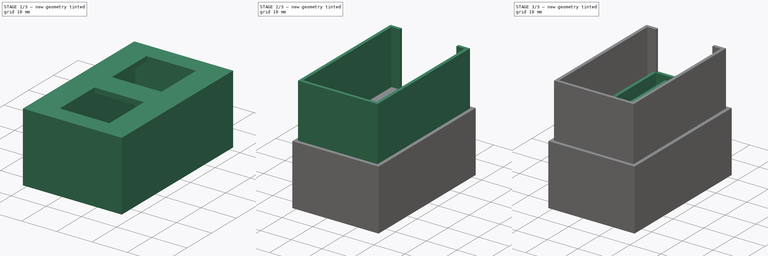
[diagram: build sequence overview — one tinted view per stage of 3, left to right]
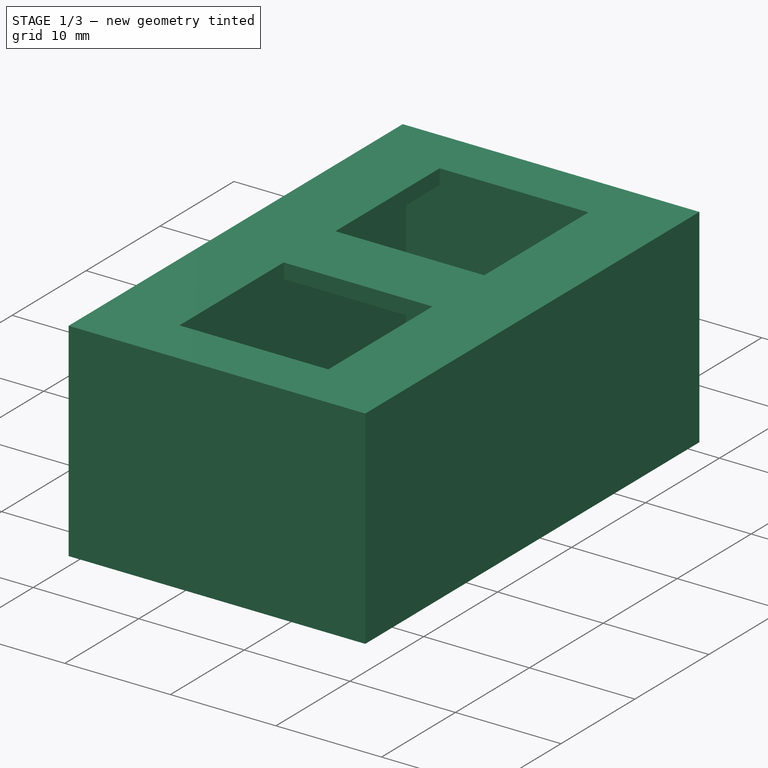
[diagram: stage 1 of 3 — iso view after this stage's code; geometry added in this stage tinted green]
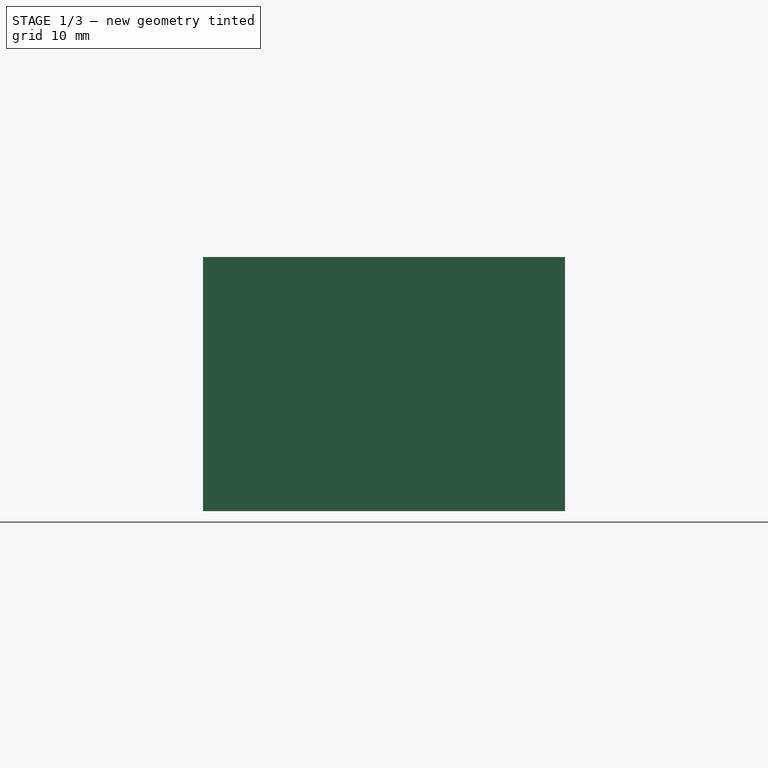
[diagram: stage 1 of 3 — front view after this stage's code; geometry added in this stage tinted green]
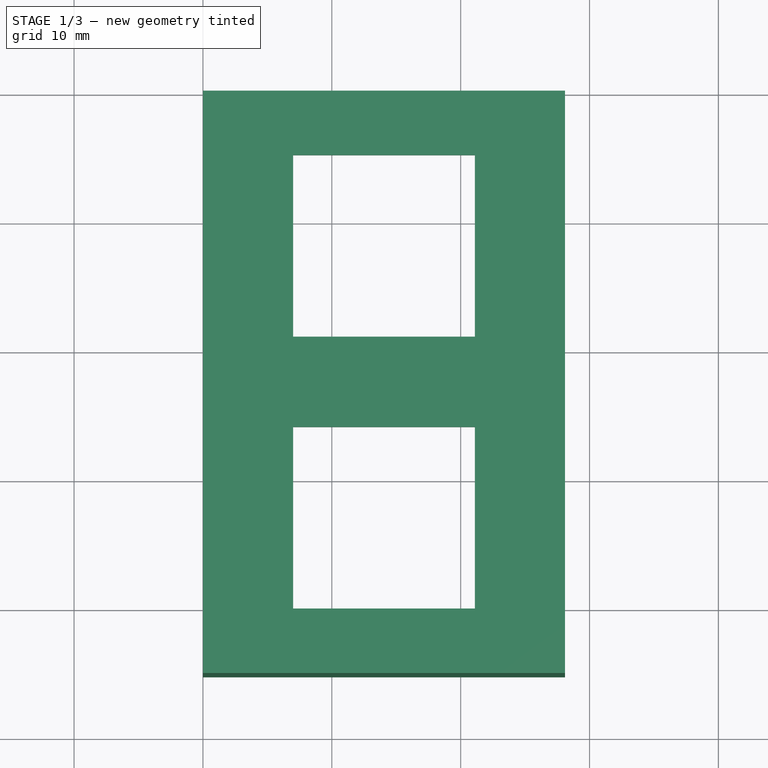
[diagram: stage 1 of 3 — top view after this stage's code; geometry added in this stage tinted green]
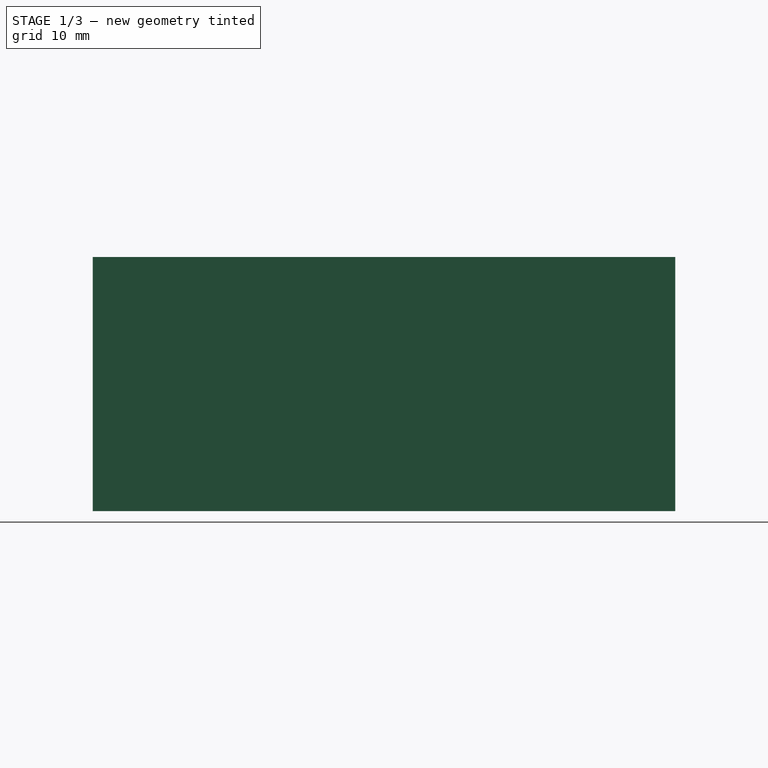
[diagram: stage 1 of 3 — right view after this stage's code; geometry added in this stage tinted green]
FCSTD DOCUMENT  (FreeCAD 0.18.4R)
Label: osu_keypad
License: All rights reserved
LicenseURL: http://en.wikipedia.org/wiki/All_rights_reserved
objects: Sketcher::SketchObject×8, PartDesign::Pad×8, Spreadsheet::Sheet×3, PartDesign::Body×3
note: 27 computed .brp shape members not serialized (recipe doc carries the construction recipe); baked Part::Feature solids carry a one-line shape summary decoded from their .brp

FEATURE [PartDesign::Body] Body  label="IDK"
  Group = -> [Sketch]
  Origin = -> Origin
FEATURE [Sketcher::SketchObject] Sketch005
  MapMode = 5
  Support = -> [XY_Plane002]
  expr: Constraints[36] = Switches.inBetween
  expr: Constraints[31] = Switches.topBuffer
  expr: Constraints[30] = Switches.totalWidth + Global.tolerances
  expr: Constraints[32] = Switches.sideBuffer
  expr: Constraints[29] = Switches.totalWidth + Global.tolerances
  expr: Constraints[20] = Switches.totalWidth + Global.tolerances
  expr: Constraints[19] = Switches.totalWidth + Global.tolerances
  expr: Constraints[10] = Switches.sideBuffer * 2 + (Switches.totalWidth + Global.tolerances) * 2 + Switches.inBetween
  expr: Constraints[9] = Switches.totalLength + Global.tolerances + Switches.topBuffer * 2
  sketch-geometry (13):
    g0: LineSegment StartX=0 StartY=0 StartZ=0 EndX=28.1 EndY=0 EndZ=0
    g1: LineSegment StartX=28.1 StartY=0 StartZ=0 EndX=28.1 EndY=-45.2 EndZ=0
    g2: LineSegment StartX=0 StartY=0 StartZ=0 EndX=0 EndY=-45.2 EndZ=0
    g3: LineSegment StartX=0 StartY=-45.2 StartZ=0 EndX=28.1 EndY=-45.2 EndZ=0
    g4: LineSegment StartX=7 StartY=-40.2 StartZ=0 EndX=21.1 EndY=-40.2 EndZ=0
    g5: LineSegment StartX=21.1 StartY=-40.2 StartZ=0 EndX=21.1 EndY=-26.1 EndZ=0
    g6: LineSegment StartX=21.1 StartY=-26.1 StartZ=0 EndX=7 EndY=-26.1 EndZ=0
    g7: LineSegment StartX=7 StartY=-26.1 StartZ=0 EndX=7 EndY=-40.2 EndZ=0
    g8: LineSegment StartX=7 StartY=-19.1 StartZ=0 EndX=7 EndY=-5 EndZ=0
    g9: LineSegment StartX=7 StartY=-5 StartZ=0 EndX=21.1 EndY=-5 EndZ=0
    g10: LineSegment StartX=21.1 StartY=-5 StartZ=0 EndX=21.1 EndY=-19.1 EndZ=0
    g11: LineSegment StartX=21.1 StartY=-19.1 StartZ=0 EndX=7 EndY=-19.1 EndZ=0
    g12: LineSegment [constr] StartX=7 StartY=-26.1 StartZ=0 EndX=7 EndY=-19.1 EndZ=0
  constraints (37):
    c: Coincident(g2,g0)
    c: Coincident(g0,g-1)
    c: Coincident(g0,g1)
    c: Coincident(g3,g1)
    c: Coincident(g3,g2)
    c: Vertical(g2)
    c: Vertical(g1)
    c: Horizontal(g0)
    c: Horizontal(g3)
    c: Distance(g0) = 28.1
    c: Distance(g2) = 45.2
    c: Coincident(g7,g4)
    c: Coincident(g7,g6)
    c: Coincident(g5,g6)
    c: Coincident(g5,g4)
    c: Vertical(g7)
    c: Vertical(g5)
    c: Horizontal(g4)
    c: Horizontal(g6)
    c: Distance(g7) = 14.1
    c: Distance(g4) = 14.1
    c: Coincident(g11,g8)
    c: Coincident(g10,g11)
    c: Coincident(g10,g9)
    c: Coincident(g8,g9)
    c: Vertical(g8)
    c: Vertical(g10)
    c: Horizontal(g11)
    c: Horizontal(g9)
    c: Distance(g8) = 14.1
    c: Distance(g11) = 14.1
    c: DistanceX(g2,g4) = 7
    c: DistanceY(g2,g4) = 5
    c: Vertical(g12)
    c: Coincident(g12,g6)
    c: Coincident(g8,g12)
    c: Distance(g12) = 7
FEATURE [PartDesign::Pad] Pad005
  Length = 1.42
  Length2 = 100
  Profile = -> Sketch005
  Type = 0
  expr: Length = Switches.clipDistance
FEATURE [PartDesign::Body] Body001  label="Base"
  Group = -> [Pad,Sketch001,Pad001,Sketch002,Pad002,Sketch003,Pad003,Sketch008,Pad006]
  Origin = -> Origin001
  Tip = -> Pad006
FEATURE [PartDesign::Pad] Pad007
  BaseFeature = -> Pad005
  Length = 18.3
  Length2 = 100
  Profile = -> Sketch007
  Reversed = true
  Type = 0
  expr: Length = Global.outerWallHeight + Global.tolerances
FEATURE [Sketcher::SketchObject] Sketch009
  AttachmentOffset = pos=(0,0,0) rot=(1,0,0;3.14159rad)
  ExternalGeometry = -> [Pad007]
  MapMode = 5
  Support = -> [Pad007]
  sketch-geometry (4):
    g0: LineSegment StartX=10.25 StartY=0 StartZ=0 EndX=17.85 EndY=-2e-16 EndZ=0
    g1: LineSegment StartX=10.25 StartY=0 StartZ=0 EndX=10.25 EndY=-1 EndZ=0
    g2: LineSegment StartX=17.85 StartY=-2e-16 StartZ=0 EndX=17.85 EndY=-1 EndZ=0
    g3: LineSegment StartX=17.85 StartY=-1 StartZ=0 EndX=10.25 EndY=-1 EndZ=0
  constraints (8):
    c: Coincident(g1,g0)
    c: Coincident(g0,g2)
    c: Coincident(g2,g3)
    c: Coincident(g3,g1)
    c: Coincident(g1,g-4)
    c: Coincident(g0,g-4)
    c: Coincident(g2,g-3)
    c: Coincident(g0,g-3)
FEATURE [PartDesign::Pad] Pad008
  BaseFeature = -> Pad007
  Length = 10.2
  Length2 = 100
  Offset = 1
  Profile = -> Sketch009
  Reversed = true
  Type = 0
  expr: Length = Global.outerWallHeight + Global.tolerances - (ProMicro.solderBuffer + ProMicro.height + Global.tolerances * 2)
FEATURE [PartDesign::Body] Body002  label="Top"
  Group = -> [Sketch005,Pad005,Sketch007,Pad007,Sketch009,Pad008]
  Origin = -> Origin002
  Placement = pos=(0,0,19.3) rot=(0,0,1;0rad)
  Tip = -> Pad008
  expr: Placement.Base.z = Global.outerWallHeight + Global.wallThickness + Global.tolerances
  expr: Placement.Base.y = 0
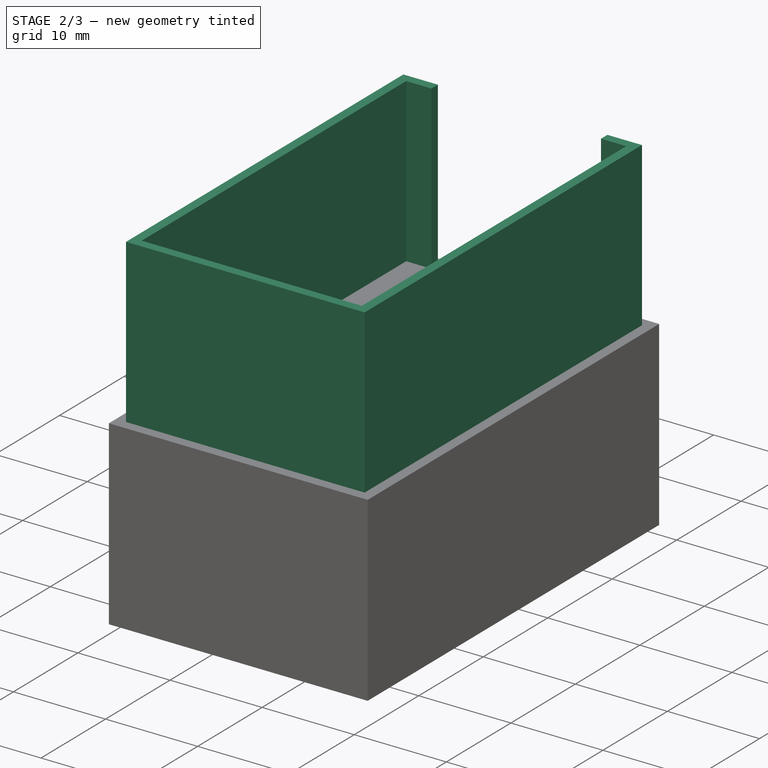
[diagram: stage 2 of 3 — iso view after this stage's code; geometry added in this stage tinted green]
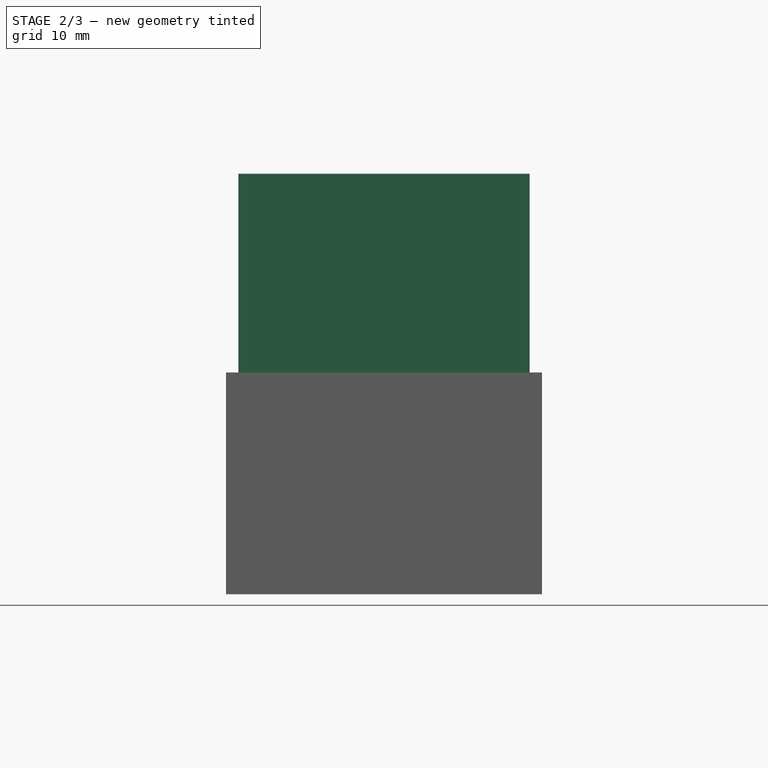
[diagram: stage 2 of 3 — front view after this stage's code; geometry added in this stage tinted green]
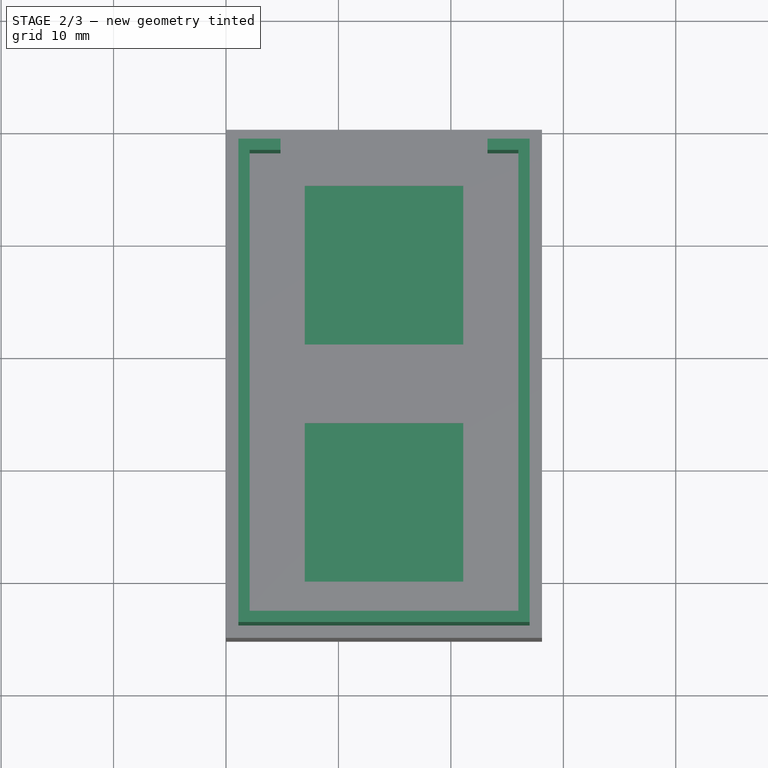
[diagram: stage 2 of 3 — top view after this stage's code; geometry added in this stage tinted green]
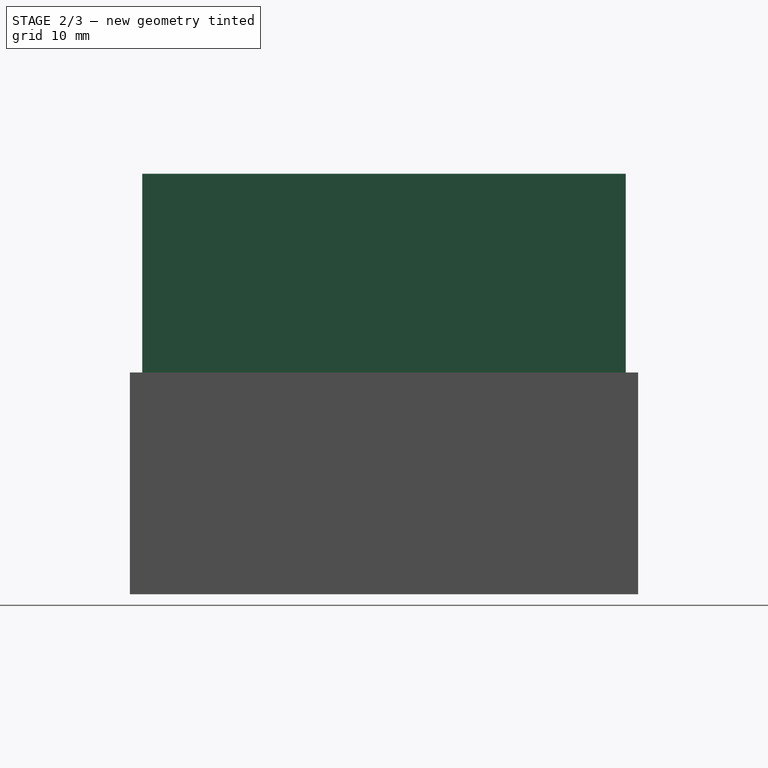
[diagram: stage 2 of 3 — right view after this stage's code; geometry added in this stage tinted green]
FEATURE [Spreadsheet::Sheet] Spreadsheet  label="ProMicro"
  cells = A1=Width; B1(width)=18.3; A2=Length; B2(length)=33.7; A3=Height; B3(height)=3.9; A4=PortWidth; B4(portWidth)=7.5; A5=SolderBuffer; B5(solderBuffer)=4; A6=PCBThickness; B6(PCBThickness)=1.5; A7=MicrochipThickness; B7(microchipThickness)=0.8; A9=SolderInset; B9(solderBufferInset)=3
FEATURE [Spreadsheet::Sheet] Spreadsheet001  label="Global"
  cells = A1=Tolerances; B1(tolerances)=0.1; A2=WallThickness; B2(wallThickness)=1; A3=InBetweenDist; B3(inBetweenDist)=2; A4=OuterWallHeight; B4(outerWallHeight)==ProMicro.solderBuffer + ProMicro.height + inBetweenDist + Switches.underDepth
FEATURE [Spreadsheet::Sheet] Spreadsheet002  label="Switches"
  cells = A1=TotalWidth; B1(totalWidth)=14; A2=TotalLength; B2(totalLength)=14; A3=InBetween; B3(inBetween)=7; A4=TopBuffer; B4(topBuffer)=7; A5=SideBuffer; B5(sideBuffer)=5; A6=UnderDepth; B6(underDepth)==5 + 3.3; A7=ClipDistance; B7(clipDistance)=1.42
FEATURE [Sketcher::SketchObject] Sketch
  MapMode = 5
  Placement = pos=(0,0,0) rot=(1,0,0;1.5708rad)
  Support = -> [XZ_Plane]
  expr: Constraints[10] = Switches.totalLength + Global.tolerances + Switches.topBuffer * 2
  expr: Constraints[8] = Global.wallThickness
  sketch-geometry (4):
    g0: LineSegment StartX=0 StartY=1 StartZ=0 EndX=28.1 EndY=1 EndZ=0
    g1: LineSegment StartX=28.1 StartY=1 StartZ=0 EndX=28.1 EndY=0 EndZ=0
    g2: LineSegment StartX=28.1 StartY=0 StartZ=0 EndX=0 EndY=0 EndZ=0
    g3: LineSegment StartX=0 StartY=0 StartZ=0 EndX=0 EndY=1 EndZ=0
  constraints (11):
    c: Coincident(g0,g1)
    c: Coincident(g1,g2)
    c: Coincident(g2,g3)
    c: Coincident(g3,g0)
    c: Horizontal(g0)
    c: Horizontal(g2)
    c: Vertical(g1)
    c: Vertical(g3)
    c: Distance(g3) = 1
    c: Coincident(g2,g-1)
    c: Distance(g0) = 28.1
FEATURE [PartDesign::Pad] Pad
  Length = 45.2
  Length2 = 100
  Placement = pos=(0,0,0) rot=(1,0,0;1.5708rad)
  Profile = -> Sketch
  Type = 0
  expr: Length = Switches.sideBuffer * 2 + (Switches.totalWidth + Global.tolerances) * 2 + Switches.inBetween
FEATURE [Sketcher::SketchObject] Sketch001
  AttachmentOffset = pos=(0,0,0) rot=(0,0,1;3.14159rad)
  ExternalGeometry = -> [Pad]
  MapMode = 5
  Placement = pos=(0,-2e-16,1) rot=(0,0,1;0rad)
  Support = -> [Pad]
  expr: Constraints[37] = ProMicro.width + Global.tolerances
  expr: Constraints[16] = Global.wallThickness
  expr: Constraints[13] = Global.wallThickness + Global.tolerances
  expr: Constraints[7] = Global.wallThickness + Global.tolerances
  expr: Constraints[15] = Global.wallThickness
  expr: Constraints[14] = Global.wallThickness
  expr: Constraints[17] = Global.wallThickness
  expr: Constraints[6] = Global.wallThickness + Global.tolerances
  expr: Constraints[5] = Global.wallThickness + Global.tolerances
  sketch-geometry (13):
    g0: LineSegment StartX=1.1 StartY=-1.1 StartZ=0 EndX=1.1 EndY=-44.1 EndZ=0
    g1: LineSegment StartX=1.1 StartY=-44.1 StartZ=0 EndX=27 EndY=-44.1 EndZ=0
    g2: LineSegment StartX=27 StartY=-44.1 StartZ=0 EndX=27 EndY=-1.1 EndZ=0
    g3: LineSegment StartX=2.1 StartY=-43.1 StartZ=0 EndX=26 EndY=-43.1 EndZ=0
    g4: LineSegment StartX=26 StartY=-43.1 StartZ=0 EndX=26 EndY=-2.1 EndZ=0
    g5: LineSegment StartX=2.1 StartY=-2.1 StartZ=0 EndX=2.1 EndY=-43.1 EndZ=0
    g6: LineSegment StartX=1.1 StartY=-1.1 StartZ=0 EndX=4.85 EndY=-1.1 EndZ=0
    g7: LineSegment StartX=2.1 StartY=-2.1 StartZ=0 EndX=4.85 EndY=-2.1 EndZ=0
    g8: LineSegment StartX=4.85 StartY=-2.1 StartZ=0 EndX=4.85 EndY=-1.1 EndZ=0
    g9: LineSegment StartX=23.25 StartY=-1.1 StartZ=0 EndX=23.25 EndY=-2.1 EndZ=0
    g10: LineSegment StartX=23.25 StartY=-1.1 StartZ=0 EndX=27 EndY=-1.1 EndZ=0
    g11: LineSegment StartX=23.25 StartY=-2.1 StartZ=0 EndX=26 EndY=-2.1 EndZ=0
    g12: LineSegment [constr] StartX=4.85 StartY=-1.1 StartZ=0 EndX=23.25 EndY=-1.1 EndZ=0
  constraints (38):
    c: Vertical(g0)
    c: Vertical(g2)
    c: Horizontal(g1)
    c: Coincident(g1,g2)
    c: Coincident(g1,g0)
    c: DistanceX(g2,g-4) = 1.1
    c: DistanceX(g-1,g0) = 1.1
    c: DistanceY(g-6,g0) = 1.1
    c: Horizontal(g3)
    c: Vertical(g5)
    c: Vertical(g4)
    c: Coincident(g3,g4)
    c: Coincident(g3,g5)
    c: DistanceY(g0,g-1) = 1.1
    c: DistanceY(g5,g0) = 1
    c: DistanceY(g0,g3) = 1
    c: DistanceX(g4,g2) = 1
    c: DistanceX(g0,g5) = 1
    c: Horizontal(g10)
    c: Horizontal(g11)
    c: Horizontal(g7)
    c: Horizontal(g6)
    c: Vertical(g8)
    c: Vertical(g9)
    c: Coincident(g8,g6)
    c: Coincident(g7,g8)
    c: Coincident(g9,g11)
    c: Coincident(g9,g10)
    c: Coincident(g10,g2)
    c: Coincident(g11,g4)
    c: Coincident(g6,g0)
    c: Coincident(g7,g5)
    c: Equal(g8,g9)
    c: Equal(g11,g7)
    c: Coincident(g12,g6)
    c: Coincident(g12,g9)
    c: Horizontal(g12)
    c: Distance(g12) = 18.4
FEATURE [PartDesign::Pad] Pad001
  BaseFeature = -> Pad
  Length = 18.1
  Length2 = 100
  Placement = pos=(0,0,0) rot=(1,0,0;1.5708rad)
  Profile = -> Sketch001
  Type = 0
  expr: Length = Global.outerWallHeight - Global.tolerances
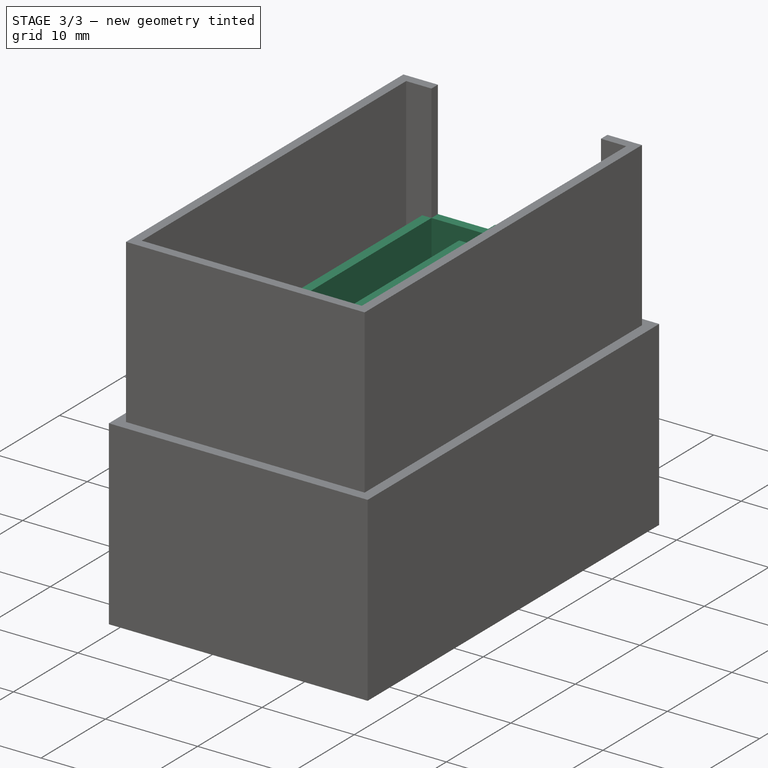
[diagram: stage 3 of 3 — iso view after this stage's code; geometry added in this stage tinted green]
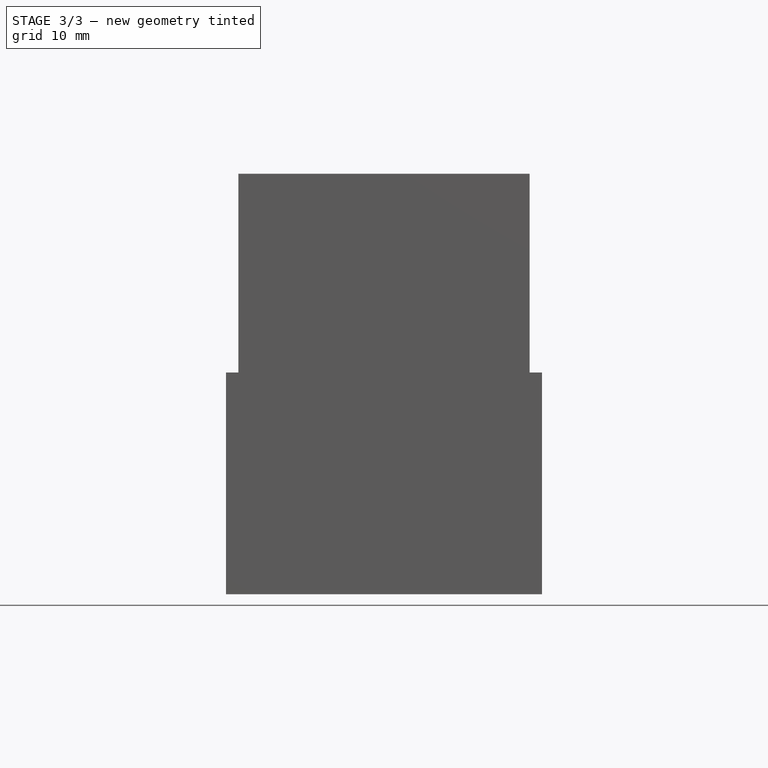
[diagram: stage 3 of 3 — front view after this stage's code; geometry added in this stage tinted green]
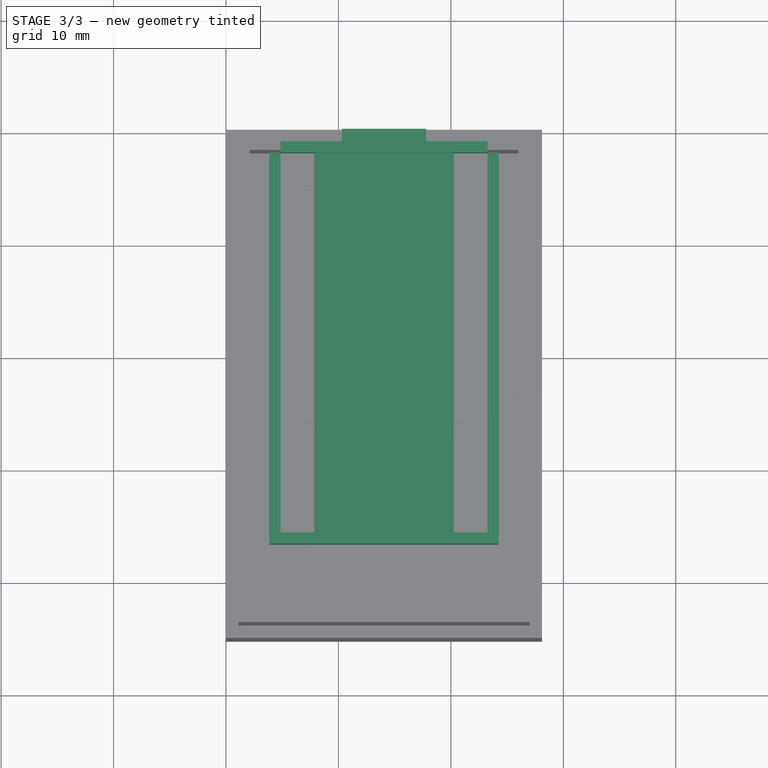
[diagram: stage 3 of 3 — top view after this stage's code; geometry added in this stage tinted green]
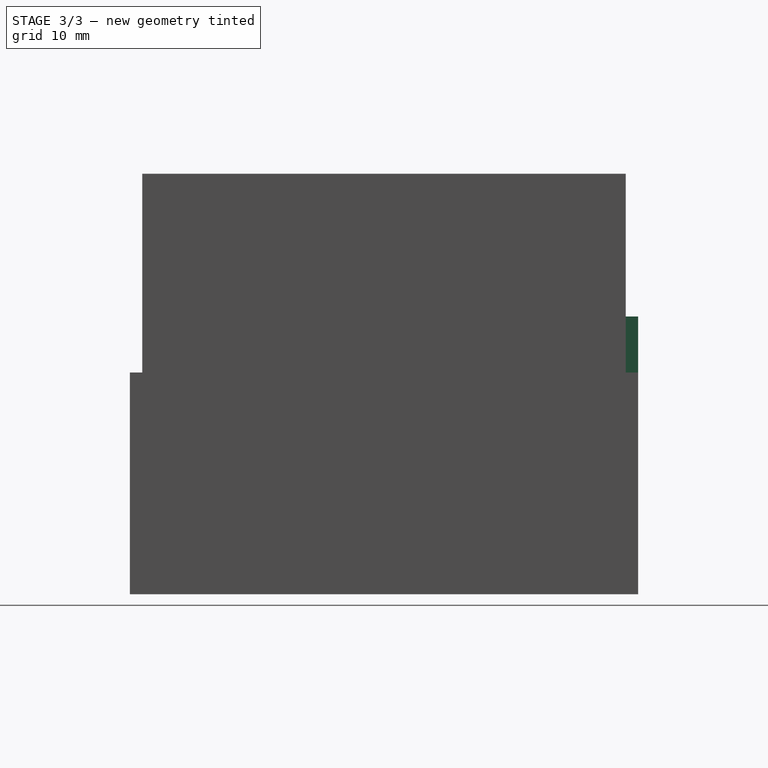
[diagram: stage 3 of 3 — right view after this stage's code; geometry added in this stage tinted green]
FEATURE [Sketcher::SketchObject] Sketch002
  ExternalGeometry = -> [Pad001]
  MapMode = 5
  Placement = pos=(0,-2e-16,1) rot=(0,0,1;3.14159rad)
  Support = -> [Pad001]
  expr: Constraints[23] = ProMicro.portWidth
  sketch-geometry (10):
    g0: LineSegment StartX=-4.85 StartY=2.1 StartZ=0 EndX=-23.25 EndY=2.1 EndZ=0
    g1: LineSegment StartX=-4.85 StartY=1.1 StartZ=0 EndX=-4.85 EndY=2.1 EndZ=0
    g2: LineSegment StartX=-23.25 StartY=1.1 StartZ=0 EndX=-23.25 EndY=2.1 EndZ=0
    g3: LineSegment StartX=-10.3 StartY=0 StartZ=0 EndX=-10.3 EndY=1.1 EndZ=0
    g4: LineSegment StartX=-17.8 StartY=0 StartZ=0 EndX=-17.8 EndY=1.1 EndZ=0
    g5: LineSegment [constr] StartX=-17.8 StartY=0 StartZ=0 EndX=-28.1 EndY=0 EndZ=0
    g6: LineSegment [constr] StartX=-10.3 StartY=0 StartZ=0 EndX=0 EndY=0 EndZ=0
    g7: LineSegment StartX=-10.3 StartY=0 StartZ=0 EndX=-17.8 EndY=0 EndZ=0
    g8: LineSegment StartX=-4.85 StartY=1.1 StartZ=0 EndX=-10.3 EndY=1.1 EndZ=0
    g9: LineSegment StartX=-17.8 StartY=1.1 StartZ=0 EndX=-23.25 EndY=1.1 EndZ=0
  constraints (24):
    c: Coincident(g0,g-3)
    c: Coincident(g0,g-4)
    c: Coincident(g0,g1)
    c: Coincident(g2,g0)
    c: Coincident(g6,g-1)
    c: Coincident(g6,g7)
    c: Coincident(g7,g3)
    c: Coincident(g3,g8)
    c: Coincident(g8,g1)
    c: Coincident(g1,g-3)
    c: Coincident(g9,g2)
    c: Coincident(g2,g-4)
    c: Coincident(g9,g4)
    c: Coincident(g4,g7)
    c: Coincident(g4,g5)
    c: Coincident(g5,g-5)
    c: Horizontal(g7)
    c: Equal(g3,g4)
    c: Equal(g5,g6)
    c: Horizontal(g8)
    c: Horizontal(g9)
    c: Horizontal(g6)
    c: Vertical(g3)
    c: Distance(g7) = 7.5
FEATURE [PartDesign::Pad] Pad002
  BaseFeature = -> Pad001
  Length = 5.4
  Length2 = 100
  Placement = pos=(0,0,0) rot=(1,0,0;1.5708rad)
  Profile = -> Sketch002
  Type = 0
  expr: Length = ProMicro.solderBuffer + ProMicro.PCBThickness - Global.tolerances
FEATURE [Sketcher::SketchObject] Sketch003
  ExternalGeometry = -> [Pad002]
  MapMode = 5
  Support = -> [XY_Plane001]
  expr: Constraints[21] = Global.wallThickness
  expr: Constraints[20] = ProMicro.length + Global.tolerances
  expr: Constraints[10] = Global.wallThickness
  sketch-geometry (8):
    g0: LineSegment StartX=4.85 StartY=-2.1 StartZ=0 EndX=3.85 EndY=-2.1 EndZ=0
    g1: LineSegment StartX=3.85 StartY=-2.1 StartZ=0 EndX=3.85 EndY=-36.9 EndZ=0
    g2: LineSegment StartX=4.85 StartY=-2.1 StartZ=0 EndX=4.85 EndY=-35.9 EndZ=0
    g3: LineSegment StartX=3.85 StartY=-36.9 StartZ=0 EndX=24.25 EndY=-36.9 EndZ=0
    g4: LineSegment StartX=4.85 StartY=-35.9 StartZ=0 EndX=23.25 EndY=-35.9 EndZ=0
    g5: LineSegment StartX=23.25 StartY=-35.9 StartZ=0 EndX=23.25 EndY=-2.1 EndZ=0
    g6: LineSegment StartX=23.25 StartY=-2.1 StartZ=0 EndX=24.25 EndY=-2.1 EndZ=0
    g7: LineSegment StartX=24.25 StartY=-2.1 StartZ=0 EndX=24.25 EndY=-36.9 EndZ=0
  constraints (22):
    c: Coincident(g0,g-3)
    c: Coincident(g2,g0)
    c: Coincident(g1,g0)
    c: Coincident(g2,g4)
    c: Coincident(g3,g1)
    c: Coincident(g4,g5)
    c: Coincident(g5,g6)
    c: Coincident(g5,g-3)
    c: Coincident(g6,g7)
    c: Coincident(g7,g3)
    c: DistanceY(g1,g2) = 1
    c: Horizontal(g4)
    c: Horizontal(g3)
    c: Horizontal(g0)
    c: Horizontal(g6)
    c: Vertical(g2)
    c: Vertical(g1)
    c: Vertical(g5)
    c: Vertical(g7)
    c: Equal(g0,g6)
    c: Distance(g2) = 33.8
    c: Distance(g0) = 1
FEATURE [PartDesign::Pad] Pad003
  BaseFeature = -> Pad002
  Length = 10
  Length2 = 100
  Placement = pos=(0,0,0) rot=(1,0,0;1.5708rad)
  Profile = -> Sketch003
  Type = 3
  UpToFace = -> Pad002 [Face17]
FEATURE [Sketcher::SketchObject] Sketch007
  AttachmentOffset = pos=(0,0,0) rot=(1,0,0;3.14159rad)
  ExternalGeometry = -> [Pad005]
  MapMode = 5
  Support = -> [Pad005]
  expr: Constraints[31] = ProMicro.portWidth + Global.tolerances
  expr: Constraints[13] = Global.wallThickness
  expr: Constraints[10] = Global.wallThickness
  expr: Constraints[12] = Global.wallThickness
  expr: Constraints[11] = Global.wallThickness
  sketch-geometry (12):
    g0: LineSegment StartX=28.1 StartY=-2e-16 StartZ=0 EndX=28.1 EndY=-45.2 EndZ=0
    g1: LineSegment StartX=28.1 StartY=-45.2 StartZ=0 EndX=0 EndY=-45.2 EndZ=0
    g2: LineSegment StartX=0 StartY=-45.2 StartZ=0 EndX=0 EndY=0 EndZ=0
    g3: LineSegment StartX=27.1 StartY=-1 StartZ=0 EndX=27.1 EndY=-44.2 EndZ=0
    g4: LineSegment StartX=27.1 StartY=-44.2 StartZ=0 EndX=1 EndY=-44.2 EndZ=0
    g5: LineSegment StartX=1 StartY=-44.2 StartZ=0 EndX=1 EndY=-1 EndZ=0
    g6: LineSegment StartX=0 StartY=0 StartZ=0 EndX=10.25 EndY=0 EndZ=0
    g7: LineSegment StartX=28.1 StartY=-2e-16 StartZ=0 EndX=17.85 EndY=-2e-16 EndZ=0
    g8: LineSegment StartX=10.25 StartY=0 StartZ=0 EndX=10.25 EndY=-1 EndZ=0
    g9: LineSegment StartX=17.85 StartY=-2e-16 StartZ=0 EndX=17.85 EndY=-1 EndZ=0
    g10: LineSegment StartX=17.85 StartY=-1 StartZ=0 EndX=27.1 EndY=-1 EndZ=0
    g11: LineSegment StartX=10.25 StartY=-1 StartZ=0 EndX=1 EndY=-1 EndZ=0
  constraints (33):
    c: Coincident(g0,g1)
    c: Coincident(g1,g2)
    c: Horizontal(g1)
    c: Vertical(g2)
    c: Coincident(g3,g4)
    c: Coincident(g4,g5)
    c: Horizontal(g4)
    c: Vertical(g3)
    c: Vertical(g5)
    c: Coincident(g0,g-6)
    c: DistanceX(g2,g5) = 1
    c: DistanceY(g5,g2) = 1
    c: DistanceX(g3,g0) = 1
    c: DistanceY(g0,g3) = 1
    c: Coincident(g11,g5)
    c: Coincident(g-1,g2)
    c: Coincident(g2,g6)
    c: Coincident(g6,g8)
    c: Coincident(g11,g8)
    c: Coincident(g9,g10)
    c: Coincident(g10,g3)
    c: Coincident(g9,g7)
    c: Coincident(g0,g7)
    c: Horizontal(g6)
    c: Horizontal(g7)
    c: Horizontal(g11)
    c: Horizontal(g10)
    c: Vertical(g8)
    c: Vertical(g9)
    c: Equal(g8,g9)
    c: Coincident(g0,g-5)
    c: DistanceX(g6,g7) = 7.6
    c: Equal(g6,g7)
FEATURE [Sketcher::SketchObject] Sketch008
  AttachmentOffset = pos=(0,0,0) rot=(0,0,1;3.14159rad)
  ExternalGeometry = -> [Pad003]
  MapMode = 5
  Placement = pos=(0,-2e-16,1) rot=(0,0,1;0rad)
  Support = -> [Pad003]
  expr: Constraints[9] = ProMicro.solderBufferInset
  sketch-geometry (6):
    g0: LineSegment [constr] StartX=4.85 StartY=-2.1 StartZ=0 EndX=7.85 EndY=-2.1 EndZ=0
    g1: LineSegment StartX=7.85 StartY=-2.1 StartZ=0 EndX=20.25 EndY=-2.1 EndZ=0
    g2: LineSegment [constr] StartX=20.25 StartY=-2.1 StartZ=0 EndX=23.25 EndY=-2.1 EndZ=0
    g3: LineSegment StartX=7.85 StartY=-2.1 StartZ=0 EndX=7.85 EndY=-35.9 EndZ=0
    g4: LineSegment StartX=20.25 StartY=-2.1 StartZ=0 EndX=20.25 EndY=-35.9 EndZ=0
    g5: LineSegment StartX=7.85 StartY=-35.9 StartZ=0 EndX=20.25 EndY=-35.9 EndZ=0
  constraints (16):
    c: Coincident(g0,g-3)
    c: Coincident(g1,g0)
    c: Coincident(g1,g3)
    c: Coincident(g3,g5)
    c: Coincident(g5,g4)
    c: Coincident(g4,g1)
    c: Coincident(g1,g2)
    c: Coincident(g2,g-4)
    c: Equal(g2,g0)
    c: Distance(g0) = 3
    c: Equal(g3,g-3)
    c: Horizontal(g0)
    c: Horizontal(g2)
    c: Horizontal(g5)
    c: Vertical(g3)
    c: Vertical(g4)
FEATURE [PartDesign::Pad] Pad006
  BaseFeature = -> Pad003
  Length = 4
  Length2 = 100
  Placement = pos=(0,0,0) rot=(1,0,0;1.5708rad)
  Profile = -> Sketch008
  Type = 0
  expr: Length = ProMicro.solderBuffer
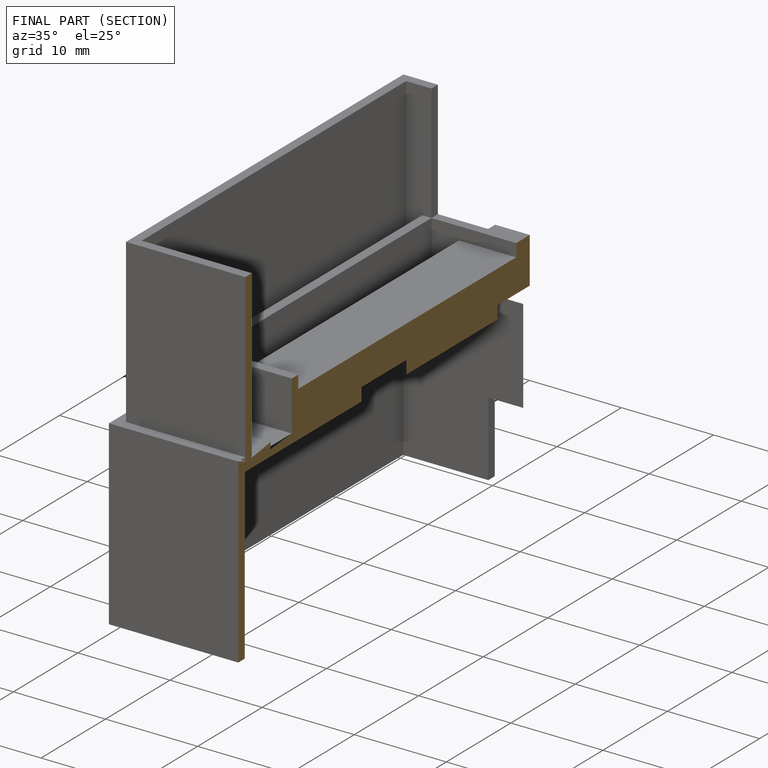
[diagram: finished part — half-section view (interior)]
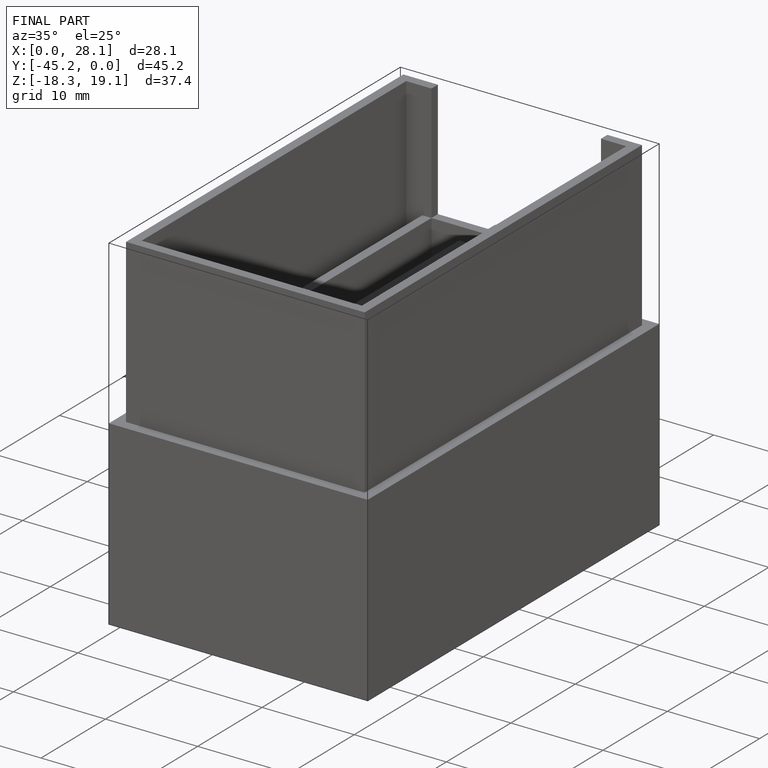
[diagram: finished part — iso view with bounding-box wireframe]
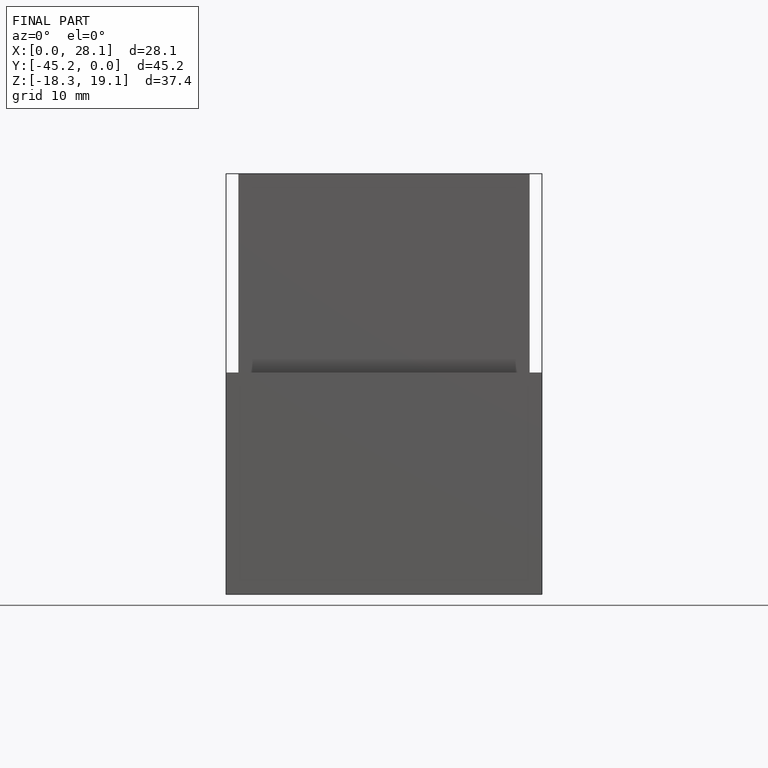
[diagram: finished part — front view with bounding-box wireframe]
